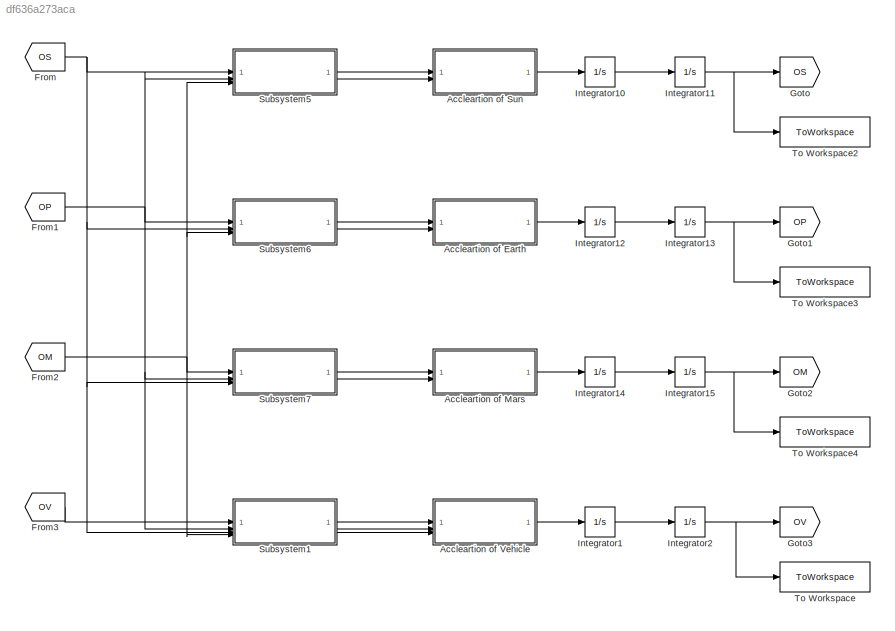
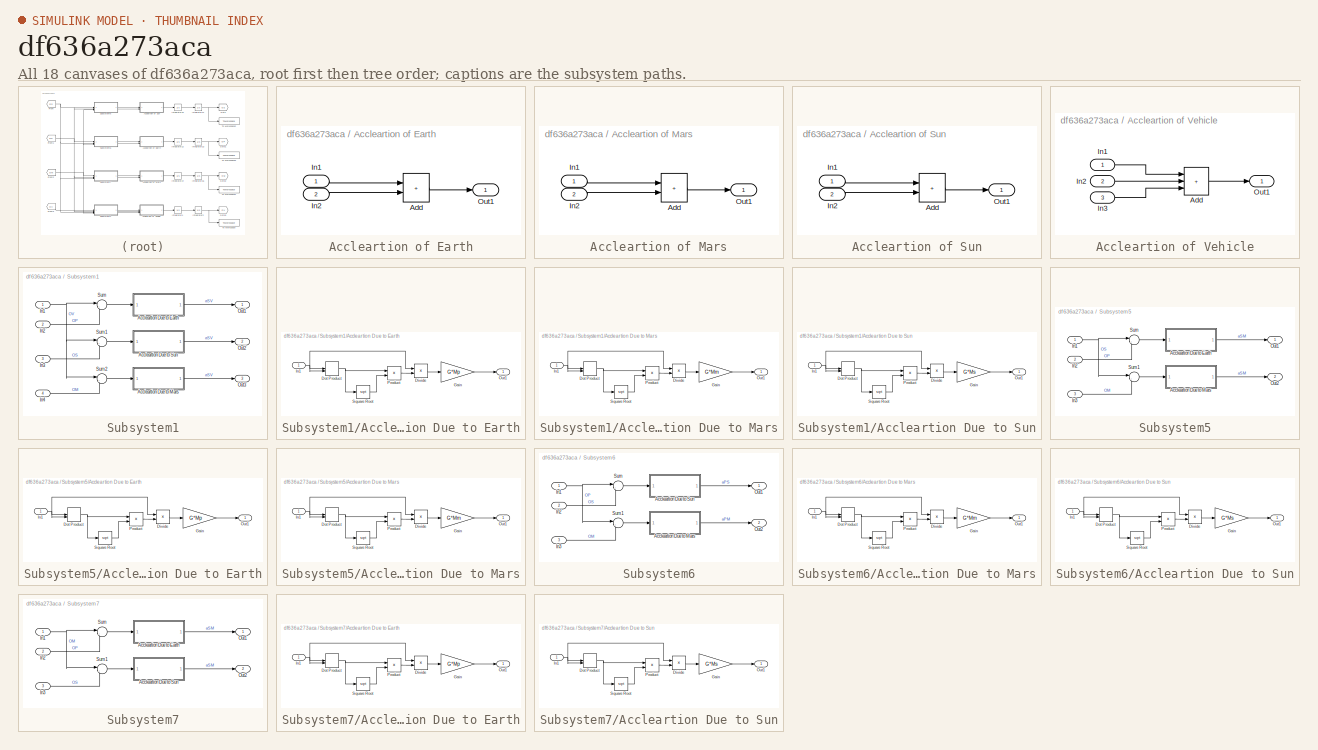
[diagram: thumbnail index - all 18 canvases of the model, root first then tree order]
MODEL slx_df636a273aca
KIND model
CONFIG AbsTol = auto
CONFIG EnableMultiTasking = off
CONFIG FixedStep = auto
CONFIG MaxStep = auto
CONFIG MinStep = auto
CONFIG RelTol = 1e-3
CONFIG SampleTimeConstraint = Unconstrained
CONFIG SolverName = VariableStepAuto
CONFIG StartTime = 0.0
CONFIG StopTime = 60480000
BLOCK [SubSystem] Accleartion of Earth
BLOCK [Sum] Accleartion of Earth/Add
  IconShape = rectangular
BLOCK [Inport] Accleartion of Earth/In1
BLOCK [Inport] Accleartion of Earth/In2
  Port = 2
BLOCK [Outport] Accleartion of Earth/Out1
BLOCK [SubSystem] Accleartion of Mars
BLOCK [Sum] Accleartion of Mars/Add
  IconShape = rectangular
BLOCK [Inport] Accleartion of Mars/In1
BLOCK [Inport] Accleartion of Mars/In2
  Port = 2
BLOCK [Outport] Accleartion of Mars/Out1
BLOCK [SubSystem] Accleartion of Sun
BLOCK [Sum] Accleartion of Sun/Add
  IconShape = rectangular
BLOCK [Inport] Accleartion of Sun/In1
BLOCK [Inport] Accleartion of Sun/In2
  Port = 2
BLOCK [Outport] Accleartion of Sun/Out1
BLOCK [SubSystem] Accleartion of Vehicle
BLOCK [Sum] Accleartion of Vehicle/Add
  IconShape = rectangular
  Inputs = +++
BLOCK [Inport] Accleartion of Vehicle/In1
BLOCK [Inport] Accleartion of Vehicle/In2
  Port = 2
BLOCK [Inport] Accleartion of Vehicle/In3
  Port = 3
BLOCK [Outport] Accleartion of Vehicle/Out1
BLOCK [From] From
  GotoTag = OS
BLOCK [From] From1
  GotoTag = OP
BLOCK [From] From2
  GotoTag = OM
BLOCK [From] From3
  GotoTag = OV
BLOCK [Goto] Goto
  GotoTag = OS
BLOCK [Goto] Goto1
  GotoTag = OP
BLOCK [Goto] Goto2
  GotoTag = OM
BLOCK [Goto] Goto3
  GotoTag = OV
BLOCK [Integrator] Integrator1
  InitialCondition = Vel_v
BLOCK [Integrator] Integrator10
  InitialCondition = Vel_s
BLOCK [Integrator] Integrator11
  InitialCondition = Pos_s
BLOCK [Integrator] Integrator12
  InitialCondition = Vel_p
BLOCK [Integrator] Integrator13
  InitialCondition = Pos_p
BLOCK [Integrator] Integrator14
  InitialCondition = Vel_m
BLOCK [Integrator] Integrator15
  InitialCondition = Pos_m
BLOCK [Integrator] Integrator2
  InitialCondition = Pos_v
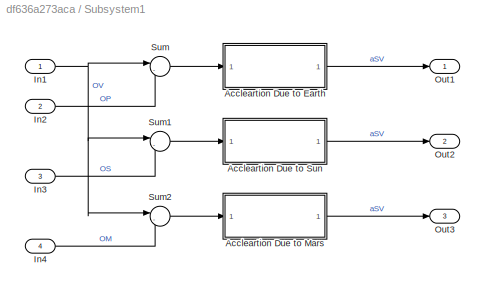
BLOCK [SubSystem] Subsystem1
BLOCK [SubSystem] Subsystem1/Accleartion Due to Earth
BLOCK [Product] Subsystem1/Accleartion Due to Earth/Divide
  Inputs = */
BLOCK [DotProduct] Subsystem1/Accleartion Due to Earth/Dot Product
  OutDataTypeStr = Inherit: Inherit via internal rule
BLOCK [Gain] Subsystem1/Accleartion Due to Earth/Gain
  Gain = G*Mp
BLOCK [Inport] Subsystem1/Accleartion Due to Earth/In1
BLOCK [Outport] Subsystem1/Accleartion Due to Earth/Out1
BLOCK [Product] Subsystem1/Accleartion Due to Earth/Product
BLOCK [Sqrt] Subsystem1/Accleartion Due to Earth/Square Root
BLOCK [SubSystem] Subsystem1/Accleartion Due to Mars
BLOCK [Product] Subsystem1/Accleartion Due to Mars/Divide
  Inputs = */
BLOCK [DotProduct] Subsystem1/Accleartion Due to Mars/Dot Product
  OutDataTypeStr = Inherit: Inherit via internal rule
BLOCK [Gain] Subsystem1/Accleartion Due to Mars/Gain
  Gain = G*Mm
BLOCK [Inport] Subsystem1/Accleartion Due to Mars/In1
BLOCK [Outport] Subsystem1/Accleartion Due to Mars/Out1
BLOCK [Product] Subsystem1/Accleartion Due to Mars/Product
BLOCK [Sqrt] Subsystem1/Accleartion Due to Mars/Square Root
BLOCK [SubSystem] Subsystem1/Accleartion Due to Sun
BLOCK [Product] Subsystem1/Accleartion Due to Sun/Divide
  Inputs = */
BLOCK [DotProduct] Subsystem1/Accleartion Due to Sun/Dot Product
  OutDataTypeStr = Inherit: Inherit via internal rule
BLOCK [Gain] Subsystem1/Accleartion Due to Sun/Gain
  Gain = G*Ms
BLOCK [Inport] Subsystem1/Accleartion Due to Sun/In1
BLOCK [Outport] Subsystem1/Accleartion Due to Sun/Out1
BLOCK [Product] Subsystem1/Accleartion Due to Sun/Product
BLOCK [Sqrt] Subsystem1/Accleartion Due to Sun/Square Root
BLOCK [Inport] Subsystem1/In1
BLOCK [Inport] Subsystem1/In2
  Port = 2
BLOCK [Inport] Subsystem1/In3
  Port = 3
BLOCK [Inport] Subsystem1/In4
  Port = 4
BLOCK [Outport] Subsystem1/Out1
BLOCK [Outport] Subsystem1/Out2
  Port = 2
BLOCK [Outport] Subsystem1/Out3
  Port = 3
BLOCK [Sum] Subsystem1/Sum
  Inputs = |-+
BLOCK [Sum] Subsystem1/Sum1
  Inputs = |-+
BLOCK [Sum] Subsystem1/Sum2
  Inputs = |-+
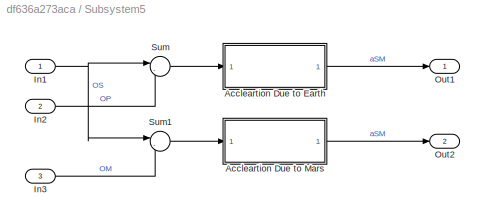
BLOCK [SubSystem] Subsystem5
BLOCK [SubSystem] Subsystem5/Accleartion Due to Earth
BLOCK [Product] Subsystem5/Accleartion Due to Earth/Divide
  Inputs = */
BLOCK [DotProduct] Subsystem5/Accleartion Due to Earth/Dot Product
  OutDataTypeStr = Inherit: Inherit via internal rule
BLOCK [Gain] Subsystem5/Accleartion Due to Earth/Gain
  Gain = G*Mp
BLOCK [Inport] Subsystem5/Accleartion Due to Earth/In1
BLOCK [Outport] Subsystem5/Accleartion Due to Earth/Out1
BLOCK [Product] Subsystem5/Accleartion Due to Earth/Product
BLOCK [Sqrt] Subsystem5/Accleartion Due to Earth/Square Root
BLOCK [SubSystem] Subsystem5/Accleartion Due to Mars
BLOCK [Product] Subsystem5/Accleartion Due to Mars/Divide
  Inputs = */
BLOCK [DotProduct] Subsystem5/Accleartion Due to Mars/Dot Product
  OutDataTypeStr = Inherit: Inherit via internal rule
BLOCK [Gain] Subsystem5/Accleartion Due to Mars/Gain
  Gain = G*Mm
BLOCK [Inport] Subsystem5/Accleartion Due to Mars/In1
BLOCK [Outport] Subsystem5/Accleartion Due to Mars/Out1
BLOCK [Product] Subsystem5/Accleartion Due to Mars/Product
BLOCK [Sqrt] Subsystem5/Accleartion Due to Mars/Square Root
BLOCK [Inport] Subsystem5/In1
BLOCK [Inport] Subsystem5/In2
  Port = 2
BLOCK [Inport] Subsystem5/In3
  Port = 3
BLOCK [Outport] Subsystem5/Out1
BLOCK [Outport] Subsystem5/Out2
  Port = 2
BLOCK [Sum] Subsystem5/Sum
  Inputs = |-+
BLOCK [Sum] Subsystem5/Sum1
  Inputs = |-+
BLOCK [SubSystem] Subsystem6
BLOCK [SubSystem] Subsystem6/Accleartion Due to Mars
BLOCK [Product] Subsystem6/Accleartion Due to Mars/Divide
  Inputs = */
BLOCK [DotProduct] Subsystem6/Accleartion Due to Mars/Dot Product
  OutDataTypeStr = Inherit: Inherit via internal rule
BLOCK [Gain] Subsystem6/Accleartion Due to Mars/Gain
  Gain = G*Mm
BLOCK [Inport] Subsystem6/Accleartion Due to Mars/In1
BLOCK [Outport] Subsystem6/Accleartion Due to Mars/Out1
BLOCK [Product] Subsystem6/Accleartion Due to Mars/Product
BLOCK [Sqrt] Subsystem6/Accleartion Due to Mars/Square Root
BLOCK [SubSystem] Subsystem6/Accleartion Due to Sun
BLOCK [Product] Subsystem6/Accleartion Due to Sun/Divide
  Inputs = */
BLOCK [DotProduct] Subsystem6/Accleartion Due to Sun/Dot Product
  OutDataTypeStr = Inherit: Inherit via internal rule
BLOCK [Gain] Subsystem6/Accleartion Due to Sun/Gain
  Gain = G*Ms
BLOCK [Inport] Subsystem6/Accleartion Due to Sun/In1
BLOCK [Outport] Subsystem6/Accleartion Due to Sun/Out1
BLOCK [Product] Subsystem6/Accleartion Due to Sun/Product
BLOCK [Sqrt] Subsystem6/Accleartion Due to Sun/Square Root
BLOCK [Inport] Subsystem6/In1
BLOCK [Inport] Subsystem6/In2
  Port = 2
BLOCK [Inport] Subsystem6/In3
  Port = 3
BLOCK [Outport] Subsystem6/Out1
BLOCK [Outport] Subsystem6/Out2
  Port = 2
BLOCK [Sum] Subsystem6/Sum
  Inputs = |-+
BLOCK [Sum] Subsystem6/Sum1
  Inputs = |-+
BLOCK [SubSystem] Subsystem7
BLOCK [SubSystem] Subsystem7/Accleartion Due to Earth
BLOCK [Product] Subsystem7/Accleartion Due to Earth/Divide
  Inputs = */
BLOCK [DotProduct] Subsystem7/Accleartion Due to Earth/Dot Product
  OutDataTypeStr = Inherit: Inherit via internal rule
BLOCK [Gain] Subsystem7/Accleartion Due to Earth/Gain
  Gain = G*Mp
BLOCK [Inport] Subsystem7/Accleartion Due to Earth/In1
BLOCK [Outport] Subsystem7/Accleartion Due to Earth/Out1
BLOCK [Product] Subsystem7/Accleartion Due to Earth/Product
BLOCK [Sqrt] Subsystem7/Accleartion Due to Earth/Square Root
BLOCK [SubSystem] Subsystem7/Accleartion Due to Sun
BLOCK [Product] Subsystem7/Accleartion Due to Sun/Divide
  Inputs = */
BLOCK [DotProduct] Subsystem7/Accleartion Due to Sun/Dot Product
  OutDataTypeStr = Inherit: Inherit via internal rule
BLOCK [Gain] Subsystem7/Accleartion Due to Sun/Gain
  Gain = G*Ms
BLOCK [Inport] Subsystem7/Accleartion Due to Sun/In1
BLOCK [Outport] Subsystem7/Accleartion Due to Sun/Out1
BLOCK [Product] Subsystem7/Accleartion Due to Sun/Product
BLOCK [Sqrt] Subsystem7/Accleartion Due to Sun/Square Root
BLOCK [Inport] Subsystem7/In1
BLOCK [Inport] Subsystem7/In2
  Port = 2
BLOCK [Inport] Subsystem7/In3
  Port = 3
BLOCK [Outport] Subsystem7/Out1
BLOCK [Outport] Subsystem7/Out2
  Port = 2
BLOCK [Sum] Subsystem7/Sum
  Inputs = |-+
BLOCK [Sum] Subsystem7/Sum1
  Inputs = |-+
BLOCK [ToWorkspace] To Workspace
  FixptAsFi = on
  MaxDataPoints = inf
  SampleTime = -1
  SaveFormat = Timeseries
  VariableName = OV
BLOCK [ToWorkspace] To Workspace2
  FixptAsFi = on
  MaxDataPoints = inf
  SampleTime = -1
  SaveFormat = Timeseries
  VariableName = OS
BLOCK [ToWorkspace] To Workspace3
  FixptAsFi = on
  MaxDataPoints = inf
  SampleTime = 3600
  SaveFormat = Timeseries
  VariableName = OP
BLOCK [ToWorkspace] To Workspace4
  FixptAsFi = on
  MaxDataPoints = inf
  SampleTime = -1
  SaveFormat = Timeseries
  VariableName = OM
LINE Accleartion of Earth/Add:1 -> Accleartion of Earth/Out1:1
LINE Accleartion of Earth/In1:1 -> Accleartion of Earth/Add:1
LINE Accleartion of Earth/In2:1 -> Accleartion of Earth/Add:2
LINE Accleartion of Earth:1 -> Integrator12:1
LINE Accleartion of Mars/Add:1 -> Accleartion of Mars/Out1:1
LINE Accleartion of Mars/In1:1 -> Accleartion of Mars/Add:1
LINE Accleartion of Mars/In2:1 -> Accleartion of Mars/Add:2
LINE Accleartion of Mars:1 -> Integrator14:1
LINE Accleartion of Sun/Add:1 -> Accleartion of Sun/Out1:1
LINE Accleartion of Sun/In1:1 -> Accleartion of Sun/Add:1
LINE Accleartion of Sun/In2:1 -> Accleartion of Sun/Add:2
LINE Accleartion of Sun:1 -> Integrator10:1
LINE Accleartion of Vehicle/Add:1 -> Accleartion of Vehicle/Out1:1
LINE Accleartion of Vehicle/In1:1 -> Accleartion of Vehicle/Add:1
LINE Accleartion of Vehicle/In2:1 -> Accleartion of Vehicle/Add:2
LINE Accleartion of Vehicle/In3:1 -> Accleartion of Vehicle/Add:3
LINE Accleartion of Vehicle:1 -> Integrator1:1
NET From1:1 -> Subsystem1:2, Subsystem5:2, Subsystem6:1, Subsystem7:2
NET From2:1 -> Subsystem1:4, Subsystem5:3, Subsystem6:3, Subsystem7:1
LINE From3:1 -> Subsystem1:1
NET From:1 -> Subsystem1:3, Subsystem5:1, Subsystem6:2, Subsystem7:3
LINE Integrator10:1 -> Integrator11:1
NET Integrator11:1 -> Goto:1, To Workspace2:1
LINE Integrator12:1 -> Integrator13:1
NET Integrator13:1 -> Goto1:1, To Workspace3:1
LINE Integrator14:1 -> Integrator15:1
NET Integrator15:1 -> Goto2:1, To Workspace4:1
LINE Integrator1:1 -> Integrator2:1
NET Integrator2:1 -> Goto3:1, To Workspace:1
LINE Subsystem1/Accleartion Due to Earth/Divide:1 -> Subsystem1/Accleartion Due to Earth/Gain:1
NET Subsystem1/Accleartion Due to Earth/Dot Product:1 -> Subsystem1/Accleartion Due to Earth/Product:1, Subsystem1/Accleartion Due to Earth/Square Root:1
LINE Subsystem1/Accleartion Due to Earth/Gain:1 -> Subsystem1/Accleartion Due to Earth/Out1:1
NET Subsystem1/Accleartion Due to Earth/In1:1 -> Subsystem1/Accleartion Due to Earth/Divide:1, Subsystem1/Accleartion Due to Earth/Dot Product:1, Subsystem1/Accleartion Due to Earth/Dot Product:2
LINE Subsystem1/Accleartion Due to Earth/Product:1 -> Subsystem1/Accleartion Due to Earth/Divide:2
LINE Subsystem1/Accleartion Due to Earth/Square Root:1 -> Subsystem1/Accleartion Due to Earth/Product:2
LINE Subsystem1/Accleartion Due to Earth:1 -> Subsystem1/Out1:1
LINE Subsystem1/Accleartion Due to Mars/Divide:1 -> Subsystem1/Accleartion Due to Mars/Gain:1
NET Subsystem1/Accleartion Due to Mars/Dot Product:1 -> Subsystem1/Accleartion Due to Mars/Product:1, Subsystem1/Accleartion Due to Mars/Square Root:1
LINE Subsystem1/Accleartion Due to Mars/Gain:1 -> Subsystem1/Accleartion Due to Mars/Out1:1
NET Subsystem1/Accleartion Due to Mars/In1:1 -> Subsystem1/Accleartion Due to Mars/Divide:1, Subsystem1/Accleartion Due to Mars/Dot Product:1, Subsystem1/Accleartion Due to Mars/Dot Product:2
LINE Subsystem1/Accleartion Due to Mars/Product:1 -> Subsystem1/Accleartion Due to Mars/Divide:2
LINE Subsystem1/Accleartion Due to Mars/Square Root:1 -> Subsystem1/Accleartion Due to Mars/Product:2
LINE Subsystem1/Accleartion Due to Mars:1 -> Subsystem1/Out3:1
LINE Subsystem1/Accleartion Due to Sun/Divide:1 -> Subsystem1/Accleartion Due to Sun/Gain:1
NET Subsystem1/Accleartion Due to Sun/Dot Product:1 -> Subsystem1/Accleartion Due to Sun/Product:1, Subsystem1/Accleartion Due to Sun/Square Root:1
LINE Subsystem1/Accleartion Due to Sun/Gain:1 -> Subsystem1/Accleartion Due to Sun/Out1:1
NET Subsystem1/Accleartion Due to Sun/In1:1 -> Subsystem1/Accleartion Due to Sun/Divide:1, Subsystem1/Accleartion Due to Sun/Dot Product:1, Subsystem1/Accleartion Due to Sun/Dot Product:2
LINE Subsystem1/Accleartion Due to Sun/Product:1 -> Subsystem1/Accleartion Due to Sun/Divide:2
LINE Subsystem1/Accleartion Due to Sun/Square Root:1 -> Subsystem1/Accleartion Due to Sun/Product:2
LINE Subsystem1/Accleartion Due to Sun:1 -> Subsystem1/Out2:1
NET Subsystem1/In1:1 -> Subsystem1/Sum1:1, Subsystem1/Sum2:1, Subsystem1/Sum:1
LINE Subsystem1/In2:1 -> Subsystem1/Sum:2
LINE Subsystem1/In3:1 -> Subsystem1/Sum1:2
LINE Subsystem1/In4:1 -> Subsystem1/Sum2:2
LINE Subsystem1/Sum1:1 -> Subsystem1/Accleartion Due to Sun:1
LINE Subsystem1/Sum2:1 -> Subsystem1/Accleartion Due to Mars:1
LINE Subsystem1/Sum:1 -> Subsystem1/Accleartion Due to Earth:1
LINE Subsystem1:1 -> Accleartion of Vehicle:1
LINE Subsystem1:2 -> Accleartion of Vehicle:2
LINE Subsystem1:3 -> Accleartion of Vehicle:3
LINE Subsystem5/Accleartion Due to Earth/Divide:1 -> Subsystem5/Accleartion Due to Earth/Gain:1
NET Subsystem5/Accleartion Due to Earth/Dot Product:1 -> Subsystem5/Accleartion Due to Earth/Product:1, Subsystem5/Accleartion Due to Earth/Square Root:1
LINE Subsystem5/Accleartion Due to Earth/Gain:1 -> Subsystem5/Accleartion Due to Earth/Out1:1
NET Subsystem5/Accleartion Due to Earth/In1:1 -> Subsystem5/Accleartion Due to Earth/Divide:1, Subsystem5/Accleartion Due to Earth/Dot Product:1, Subsystem5/Accleartion Due to Earth/Dot Product:2
LINE Subsystem5/Accleartion Due to Earth/Product:1 -> Subsystem5/Accleartion Due to Earth/Divide:2
LINE Subsystem5/Accleartion Due to Earth/Square Root:1 -> Subsystem5/Accleartion Due to Earth/Product:2
LINE Subsystem5/Accleartion Due to Earth:1 -> Subsystem5/Out1:1
LINE Subsystem5/Accleartion Due to Mars/Divide:1 -> Subsystem5/Accleartion Due to Mars/Gain:1
NET Subsystem5/Accleartion Due to Mars/Dot Product:1 -> Subsystem5/Accleartion Due to Mars/Product:1, Subsystem5/Accleartion Due to Mars/Square Root:1
LINE Subsystem5/Accleartion Due to Mars/Gain:1 -> Subsystem5/Accleartion Due to Mars/Out1:1
NET Subsystem5/Accleartion Due to Mars/In1:1 -> Subsystem5/Accleartion Due to Mars/Divide:1, Subsystem5/Accleartion Due to Mars/Dot Product:1, Subsystem5/Accleartion Due to Mars/Dot Product:2
LINE Subsystem5/Accleartion Due to Mars/Product:1 -> Subsystem5/Accleartion Due to Mars/Divide:2
LINE Subsystem5/Accleartion Due to Mars/Square Root:1 -> Subsystem5/Accleartion Due to Mars/Product:2
LINE Subsystem5/Accleartion Due to Mars:1 -> Subsystem5/Out2:1
NET Subsystem5/In1:1 -> Subsystem5/Sum1:1, Subsystem5/Sum:1
LINE Subsystem5/In2:1 -> Subsystem5/Sum:2
LINE Subsystem5/In3:1 -> Subsystem5/Sum1:2
LINE Subsystem5/Sum1:1 -> Subsystem5/Accleartion Due to Mars:1
LINE Subsystem5/Sum:1 -> Subsystem5/Accleartion Due to Earth:1
LINE Subsystem5:1 -> Accleartion of Sun:1
LINE Subsystem5:2 -> Accleartion of Sun:2
LINE Subsystem6/Accleartion Due to Mars/Divide:1 -> Subsystem6/Accleartion Due to Mars/Gain:1
NET Subsystem6/Accleartion Due to Mars/Dot Product:1 -> Subsystem6/Accleartion Due to Mars/Product:1, Subsystem6/Accleartion Due to Mars/Square Root:1
LINE Subsystem6/Accleartion Due to Mars/Gain:1 -> Subsystem6/Accleartion Due to Mars/Out1:1
NET Subsystem6/Accleartion Due to Mars/In1:1 -> Subsystem6/Accleartion Due to Mars/Divide:1, Subsystem6/Accleartion Due to Mars/Dot Product:1, Subsystem6/Accleartion Due to Mars/Dot Product:2
LINE Subsystem6/Accleartion Due to Mars/Product:1 -> Subsystem6/Accleartion Due to Mars/Divide:2
LINE Subsystem6/Accleartion Due to Mars/Square Root:1 -> Subsystem6/Accleartion Due to Mars/Product:2
LINE Subsystem6/Accleartion Due to Mars:1 -> Subsystem6/Out2:1
LINE Subsystem6/Accleartion Due to Sun/Divide:1 -> Subsystem6/Accleartion Due to Sun/Gain:1
NET Subsystem6/Accleartion Due to Sun/Dot Product:1 -> Subsystem6/Accleartion Due to Sun/Product:1, Subsystem6/Accleartion Due to Sun/Square Root:1
LINE Subsystem6/Accleartion Due to Sun/Gain:1 -> Subsystem6/Accleartion Due to Sun/Out1:1
NET Subsystem6/Accleartion Due to Sun/In1:1 -> Subsystem6/Accleartion Due to Sun/Divide:1, Subsystem6/Accleartion Due to Sun/Dot Product:1, Subsystem6/Accleartion Due to Sun/Dot Product:2
LINE Subsystem6/Accleartion Due to Sun/Product:1 -> Subsystem6/Accleartion Due to Sun/Divide:2
LINE Subsystem6/Accleartion Due to Sun/Square Root:1 -> Subsystem6/Accleartion Due to Sun/Product:2
LINE Subsystem6/Accleartion Due to Sun:1 -> Subsystem6/Out1:1
NET Subsystem6/In1:1 -> Subsystem6/Sum1:1, Subsystem6/Sum:1
LINE Subsystem6/In2:1 -> Subsystem6/Sum:2
LINE Subsystem6/In3:1 -> Subsystem6/Sum1:2
LINE Subsystem6/Sum1:1 -> Subsystem6/Accleartion Due to Mars:1
LINE Subsystem6/Sum:1 -> Subsystem6/Accleartion Due to Sun:1
LINE Subsystem6:1 -> Accleartion of Earth:1
LINE Subsystem6:2 -> Accleartion of Earth:2
LINE Subsystem7/Accleartion Due to Earth/Divide:1 -> Subsystem7/Accleartion Due to Earth/Gain:1
NET Subsystem7/Accleartion Due to Earth/Dot Product:1 -> Subsystem7/Accleartion Due to Earth/Product:1, Subsystem7/Accleartion Due to Earth/Square Root:1
LINE Subsystem7/Accleartion Due to Earth/Gain:1 -> Subsystem7/Accleartion Due to Earth/Out1:1
NET Subsystem7/Accleartion Due to Earth/In1:1 -> Subsystem7/Accleartion Due to Earth/Divide:1, Subsystem7/Accleartion Due to Earth/Dot Product:1, Subsystem7/Accleartion Due to Earth/Dot Product:2
LINE Subsystem7/Accleartion Due to Earth/Product:1 -> Subsystem7/Accleartion Due to Earth/Divide:2
LINE Subsystem7/Accleartion Due to Earth/Square Root:1 -> Subsystem7/Accleartion Due to Earth/Product:2
LINE Subsystem7/Accleartion Due to Earth:1 -> Subsystem7/Out1:1
LINE Subsystem7/Accleartion Due to Sun/Divide:1 -> Subsystem7/Accleartion Due to Sun/Gain:1
NET Subsystem7/Accleartion Due to Sun/Dot Product:1 -> Subsystem7/Accleartion Due to Sun/Product:1, Subsystem7/Accleartion Due to Sun/Square Root:1
LINE Subsystem7/Accleartion Due to Sun/Gain:1 -> Subsystem7/Accleartion Due to Sun/Out1:1
NET Subsystem7/Accleartion Due to Sun/In1:1 -> Subsystem7/Accleartion Due to Sun/Divide:1, Subsystem7/Accleartion Due to Sun/Dot Product:1, Subsystem7/Accleartion Due to Sun/Dot Product:2
LINE Subsystem7/Accleartion Due to Sun/Product:1 -> Subsystem7/Accleartion Due to Sun/Divide:2
LINE Subsystem7/Accleartion Due to Sun/Square Root:1 -> Subsystem7/Accleartion Due to Sun/Product:2
LINE Subsystem7/Accleartion Due to Sun:1 -> Subsystem7/Out2:1
NET Subsystem7/In1:1 -> Subsystem7/Sum1:1, Subsystem7/Sum:1
LINE Subsystem7/In2:1 -> Subsystem7/Sum:2
LINE Subsystem7/In3:1 -> Subsystem7/Sum1:2
LINE Subsystem7/Sum1:1 -> Subsystem7/Accleartion Due to Sun:1
LINE Subsystem7/Sum:1 -> Subsystem7/Accleartion Due to Earth:1
LINE Subsystem7:1 -> Accleartion of Mars:1
LINE Subsystem7:2 -> Accleartion of Mars:2
note: NET lines group one-source signal fan-out (src -> all destinations, sorted); 1:1 wires keep LINE
